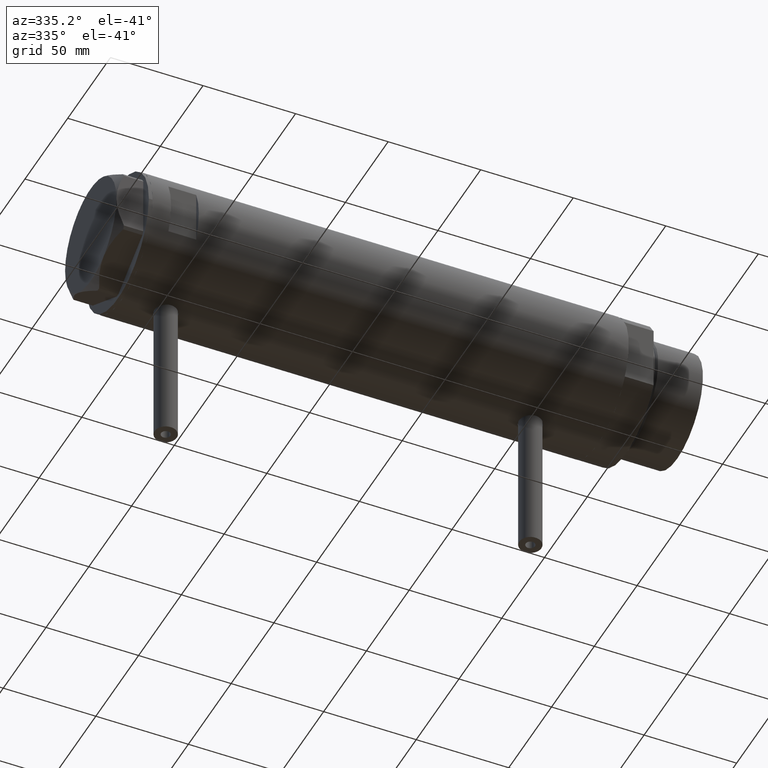
[diagram: clean part render]
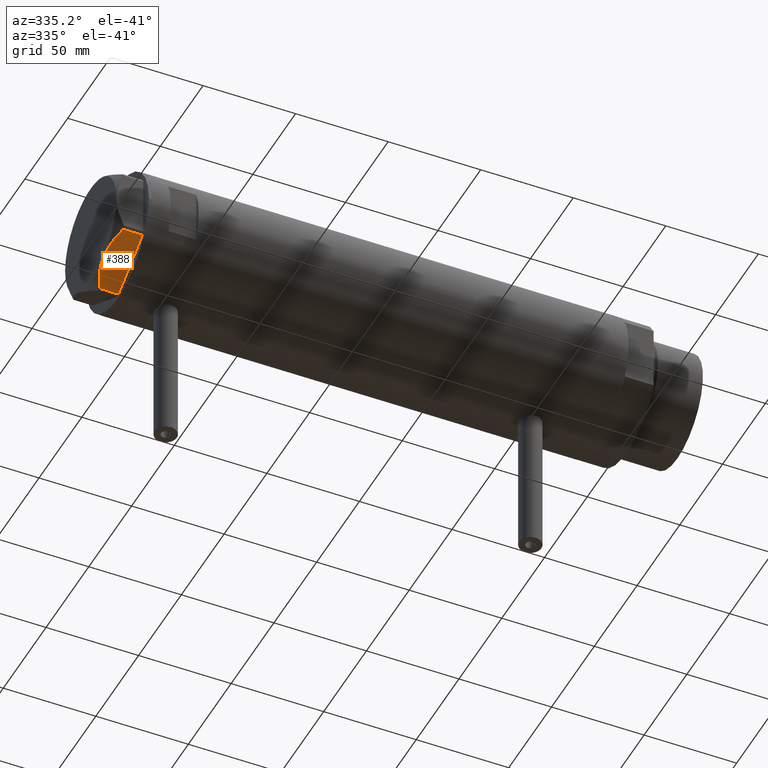
[diagram: same view with one face highlighted and labeled with its STEP entity id]
A machine part, auxiliary view. The second image highlights one B-rep face of the part: STEP entity #388.
In plain terms, the highlighted planar face has unit normal (0, 0.5, 0.866).
Its self-contained STEP definition (entity closure, byte-faithful):
#19 = AXIS2_PLACEMENT_3D ( 'NONE', #1333, #4268, #4684 ) ;
#26 = DIRECTION ( 'NONE',  ( -0.8660254037844387076, -0.4999999999999998335, 0.000000000000000000 ) ) ;
#179 = CARTESIAN_POINT ( 'NONE',  ( -0.9699484522384067553, 34.08101615137763218, 10.40518423703594841 ) ) ;
#212 = CARTESIAN_POINT ( 'NONE',  ( -5.430403497542002356, 31.50577123026336679, 12.63511531451932157 ) ) ;
#327 = VERTEX_POINT ( 'NONE', #886 ) ;
#343 = ORIENTED_EDGE ( 'NONE', *, *, #2633, .T. ) ;
#388 = ADVANCED_FACE ( 'NONE', ( #3594 ), #2800, .F. ) ;
#482 = CARTESIAN_POINT ( 'NONE',  ( -14.38812268849982878, 26.33402964403881441, 14.50000000000000355 ) ) ;
#489 = CARTESIAN_POINT ( 'NONE',  ( -23.36084816446653534, 21.15362417512481841, 12.99122625442232248 ) ) ;
#501 = VERTEX_POINT ( 'NONE', #3708 ) ;
#609 = ORIENTED_EDGE ( 'NONE', *, *, #4277, .T. ) ;
#663 = LINE ( 'NONE', #1030, #1112 ) ;
#863 = CARTESIAN_POINT ( 'NONE',  ( -27.92668431253403583, 18.51753744596231854, 11.01056656432685266 ) ) ;
#886 = CARTESIAN_POINT ( 'NONE',  ( -14.99999999999999645, 25.98076211353316367, 14.50000000000000000 ) ) ;
#900 = ORIENTED_EDGE ( 'NONE', *, *, #2849, .T. ) ;
#1030 = CARTESIAN_POINT ( 'NONE',  ( -0.9699484522385681817, 34.08101615137753981, 14.50000000000000000 ) ) ;
#1055 = VECTOR ( 'NONE', #26, 1000.000000000000114 ) ;
#1112 = VECTOR ( 'NONE', #3249, 1000.000000000000000 ) ;
#1138 = LINE ( 'NONE', #4113, #1055 ) ;
#1220 = CARTESIAN_POINT ( 'NONE',  ( -24.52256617298829866, 20.48290597018235104, 12.55468001512206833 ) ) ;
#1294 = CARTESIAN_POINT ( 'NONE',  ( -29.03005154776140628, 17.88050807568878753, 14.50000000000000000 ) ) ;
#1333 = CARTESIAN_POINT ( 'NONE',  ( 0.000000000000000000, 34.64101615137754209, 14.50000000000000000 ) ) ;
#1345 = VERTEX_POINT ( 'NONE', #4044 ) ;
#1591 = VERTEX_POINT ( 'NONE', #2994 ) ;
#1612 = CARTESIAN_POINT ( 'NONE',  ( -11.92931894229901246, 27.75362064879230317, 14.29910535634587099 ) ) ;
#1901 = B_SPLINE_CURVE_WITH_KNOTS ( 'NONE', 3,
 ( #4535, #4122, #2317, #4096, #489, #1220, #2698, #4165, #863, #4080 ),
 .UNSPECIFIED., .F., .F.,
 ( 4, 2, 2, 2, 4 ),
 ( 0.01795453117522810907, 0.02625795893839791631, 0.02833381587919037159, 0.03040967281998281993, 0.03456138670156771314 ),
 .UNSPECIFIED. ) ;
#1947 = CARTESIAN_POINT ( 'NONE',  ( -14.99999999999999645, 25.98076211353316367, 14.50000000000000000 ) ) ;
#2271 = VERTEX_POINT ( 'NONE', #3277 ) ;
#2278 = B_SPLINE_CURVE_WITH_KNOTS ( 'NONE', 3,
 ( #179, #3440, #212, #3805, #3126, #1612, #3096, #4606, #482, #1947 ),
 .UNSPECIFIED., .F., .F.,
 ( 4, 2, 2, 2, 4 ),
 ( 0.001230196178133369841, 0.009592363676680740539, 0.01377344742595442567, 0.01586398930059126564, 0.01795453117522810907 ),
 .UNSPECIFIED. ) ;
#2317 = CARTESIAN_POINT ( 'NONE',  ( -19.82219921729533141, 23.19666409734169932, 14.10092492974134792 ) ) ;
#2523 = EDGE_CURVE ( 'NONE', #327, #1591, #1901, .T. ) ;
#2633 = EDGE_CURVE ( 'NONE', #1345, #501, #663, .T. ) ;
#2698 = CARTESIAN_POINT ( 'NONE',  ( -25.09761465865699392, 20.15090157218442357, 12.31959434659020225 ) ) ;
#2721 = DIRECTION ( 'NONE',  ( 0.000000000000000000, 0.000000000000000000, 1.000000000000000000 ) ) ;
#2800 = PLANE ( 'NONE',  #19 ) ;
#2849 = EDGE_CURVE ( 'NONE', #501, #2271, #1138, .T. ) ;
#2994 = CARTESIAN_POINT ( 'NONE',  ( -29.03005154776140984, 17.88050807568878398, 10.40518423703604256 ) ) ;
#3041 = VECTOR ( 'NONE', #2721, 1000.000000000000000 ) ;
#3096 = CARTESIAN_POINT ( 'NONE',  ( -12.54037849421162676, 27.40082525200466890, 14.37423503257921809 ) ) ;
#3126 = CARTESIAN_POINT ( 'NONE',  ( -10.11505054612624832, 28.80108899570488035, 14.00566141361760764 ) ) ;
#3249 = DIRECTION ( 'NONE',  ( 0.000000000000000000, 0.000000000000000000, -1.000000000000000000 ) ) ;
#3277 = CARTESIAN_POINT ( 'NONE',  ( -29.03005154776141339, 17.88050807568878042, 0.000000000000000000 ) ) ;
#3440 = CARTESIAN_POINT ( 'NONE',  ( -3.175372020745250712, 32.80771426042305450, 11.61522964162834093 ) ) ;
#3554 = EDGE_LOOP ( 'NONE', ( #900, #609, #4280, #4071, #343 ) ) ;
#3594 = FACE_OUTER_BOUND ( 'NONE', #3554, .T. ) ;
#3708 = CARTESIAN_POINT ( 'NONE',  ( -0.9699484522385684038, 34.08101615137753981, 0.000000000000000000 ) ) ;
#3805 = CARTESIAN_POINT ( 'NONE',  ( -8.929227268745748347, 29.48572438411184393, 13.71922620632299328 ) ) ;
#4044 = CARTESIAN_POINT ( 'NONE',  ( -0.9699484522384067553, 34.08101615137763218, 10.40518423703594841 ) ) ;
#4071 = ORIENTED_EDGE ( 'NONE', *, *, #4658, .F. ) ;
#4080 = CARTESIAN_POINT ( 'NONE',  ( -29.03005154776140984, 17.88050807568878398, 10.40518423703604256 ) ) ;
#4096 = CARTESIAN_POINT ( 'NONE',  ( -22.77266513462828712, 21.49321180573470258, 13.19311392138146388 ) ) ;
#4113 = CARTESIAN_POINT ( 'NONE',  ( 0.000000000000000000, 34.64101615137754209, 0.000000000000000000 ) ) ;
#4122 = CARTESIAN_POINT ( 'NONE',  ( -17.43031680809874473, 24.57761805016127710, 14.50000000000000533 ) ) ;
#4165 = CARTESIAN_POINT ( 'NONE',  ( -26.80734602959449475, 19.16378770493171046, 11.56973717813737856 ) ) ;
#4166 = LINE ( 'NONE', #1294, #3041 ) ;
#4268 = DIRECTION ( 'NONE',  ( 0.4999999999999998335, -0.8660254037844388186, 0.000000000000000000 ) ) ;
#4277 = EDGE_CURVE ( 'NONE', #2271, #1591, #4166, .T. ) ;
#4280 = ORIENTED_EDGE ( 'NONE', *, *, #2523, .F. ) ;
#4535 = CARTESIAN_POINT ( 'NONE',  ( -14.99999999999999645, 25.98076211353316367, 14.50000000000000000 ) ) ;
#4606 = CARTESIAN_POINT ( 'NONE',  ( -13.77383861939865461, 26.68868671669327242, 14.47500996539161555 ) ) ;
#4658 = EDGE_CURVE ( 'NONE', #1345, #327, #2278, .T. ) ;
#4684 = DIRECTION ( 'NONE',  ( 0.8660254037844387076, 0.4999999999999997780, 0.000000000000000000 ) ) ;